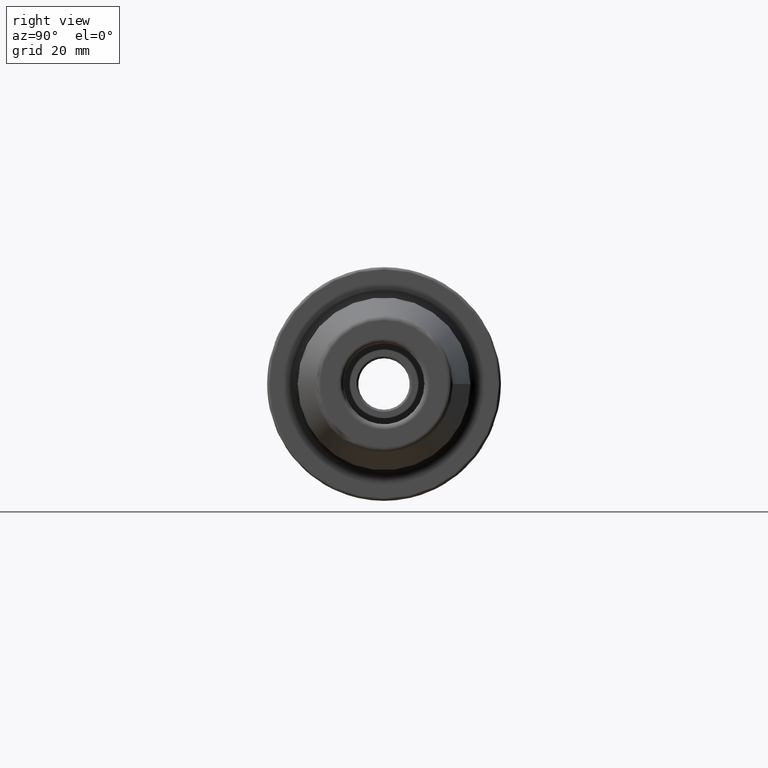
[diagram: clean part render]
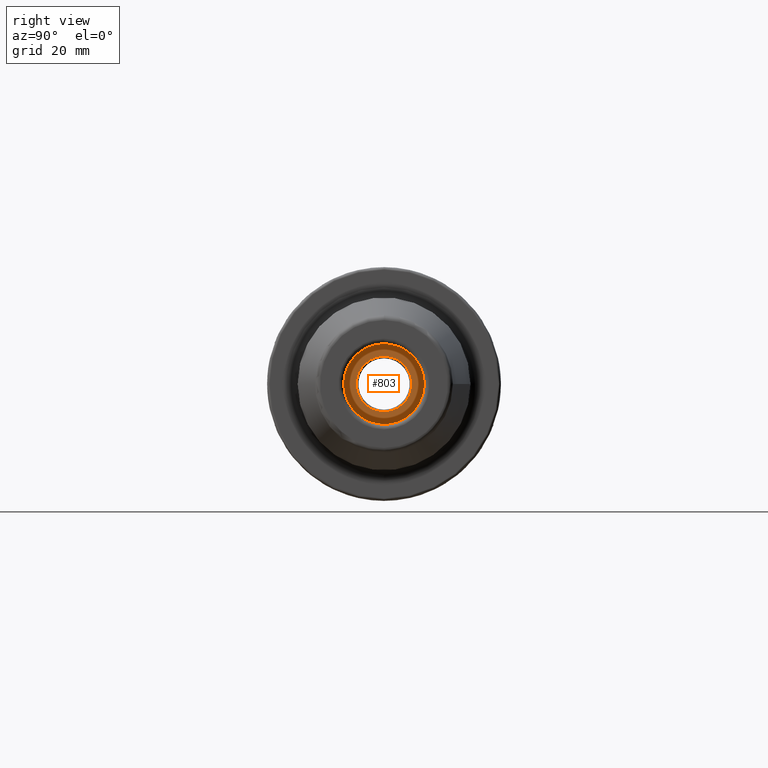
[diagram: same view with one face highlighted and labeled with its STEP entity id]
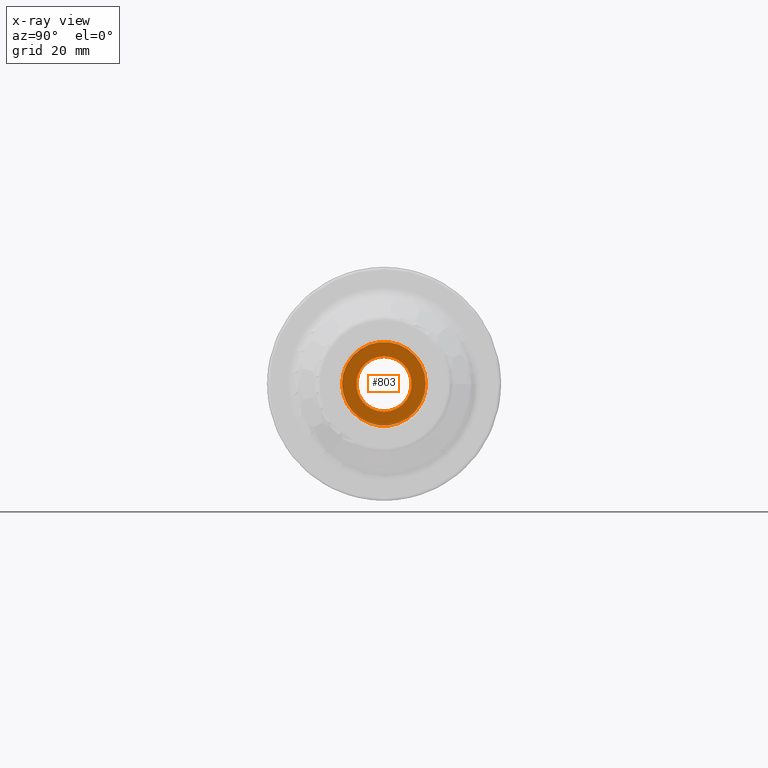
[diagram: x-ray of the same camera — body ghosted, the highlighted face saturated]
A machine part, right view. The second image highlights one B-rep face of the part: STEP entity #803.
The next image is the same camera in x-ray: the body ghosted, the highlighted face saturated — about 13% of this face is hidden behind the body in this view.
In plain terms, the highlighted planar face has unit normal (1, 0, 0).
Its self-contained STEP definition (entity closure, byte-faithful):
#41=FACE_BOUND('',#152,.T.);
#48=PLANE('',#897);
#98=FACE_OUTER_BOUND('',#151,.T.);
#151=EDGE_LOOP('',(#585));
#152=EDGE_LOOP('',(#586));
#276=CIRCLE('',#869,5.4585);
#293=CIRCLE('',#896,8.2375);
#336=VERTEX_POINT('',#1246);
#350=VERTEX_POINT('',#1291);
#417=EDGE_CURVE('',#336,#336,#276,.T.);
#439=EDGE_CURVE('',#350,#350,#293,.T.);
#585=ORIENTED_EDGE('',*,*,#439,.T.);
#586=ORIENTED_EDGE('',*,*,#417,.T.);
#803=ADVANCED_FACE('',(#98,#41),#48,.T.);
#869=AXIS2_PLACEMENT_3D('',#1247,#987,#988);
#896=AXIS2_PLACEMENT_3D('',#1293,#1046,#1047);
#897=AXIS2_PLACEMENT_3D('',#1294,#1048,#1049);
#987=DIRECTION('center_axis',(-1.,0.,0.));
#988=DIRECTION('ref_axis',(0.,0.,-1.));
#1046=DIRECTION('center_axis',(1.,0.,0.));
#1047=DIRECTION('ref_axis',(0.,0.,-1.));
#1048=DIRECTION('center_axis',(1.,0.,0.));
#1049=DIRECTION('ref_axis',(0.,0.,-1.));
#1246=CARTESIAN_POINT('',(28.,6.68473455314583E-16,5.4585));
#1247=CARTESIAN_POINT('Origin',(28.,0.,0.));
#1291=CARTESIAN_POINT('',(28.,8.2375,1.00880280079763E-15));
#1293=CARTESIAN_POINT('Origin',(28.,0.,0.));
#1294=CARTESIAN_POINT('Origin',(28.,0.,0.));